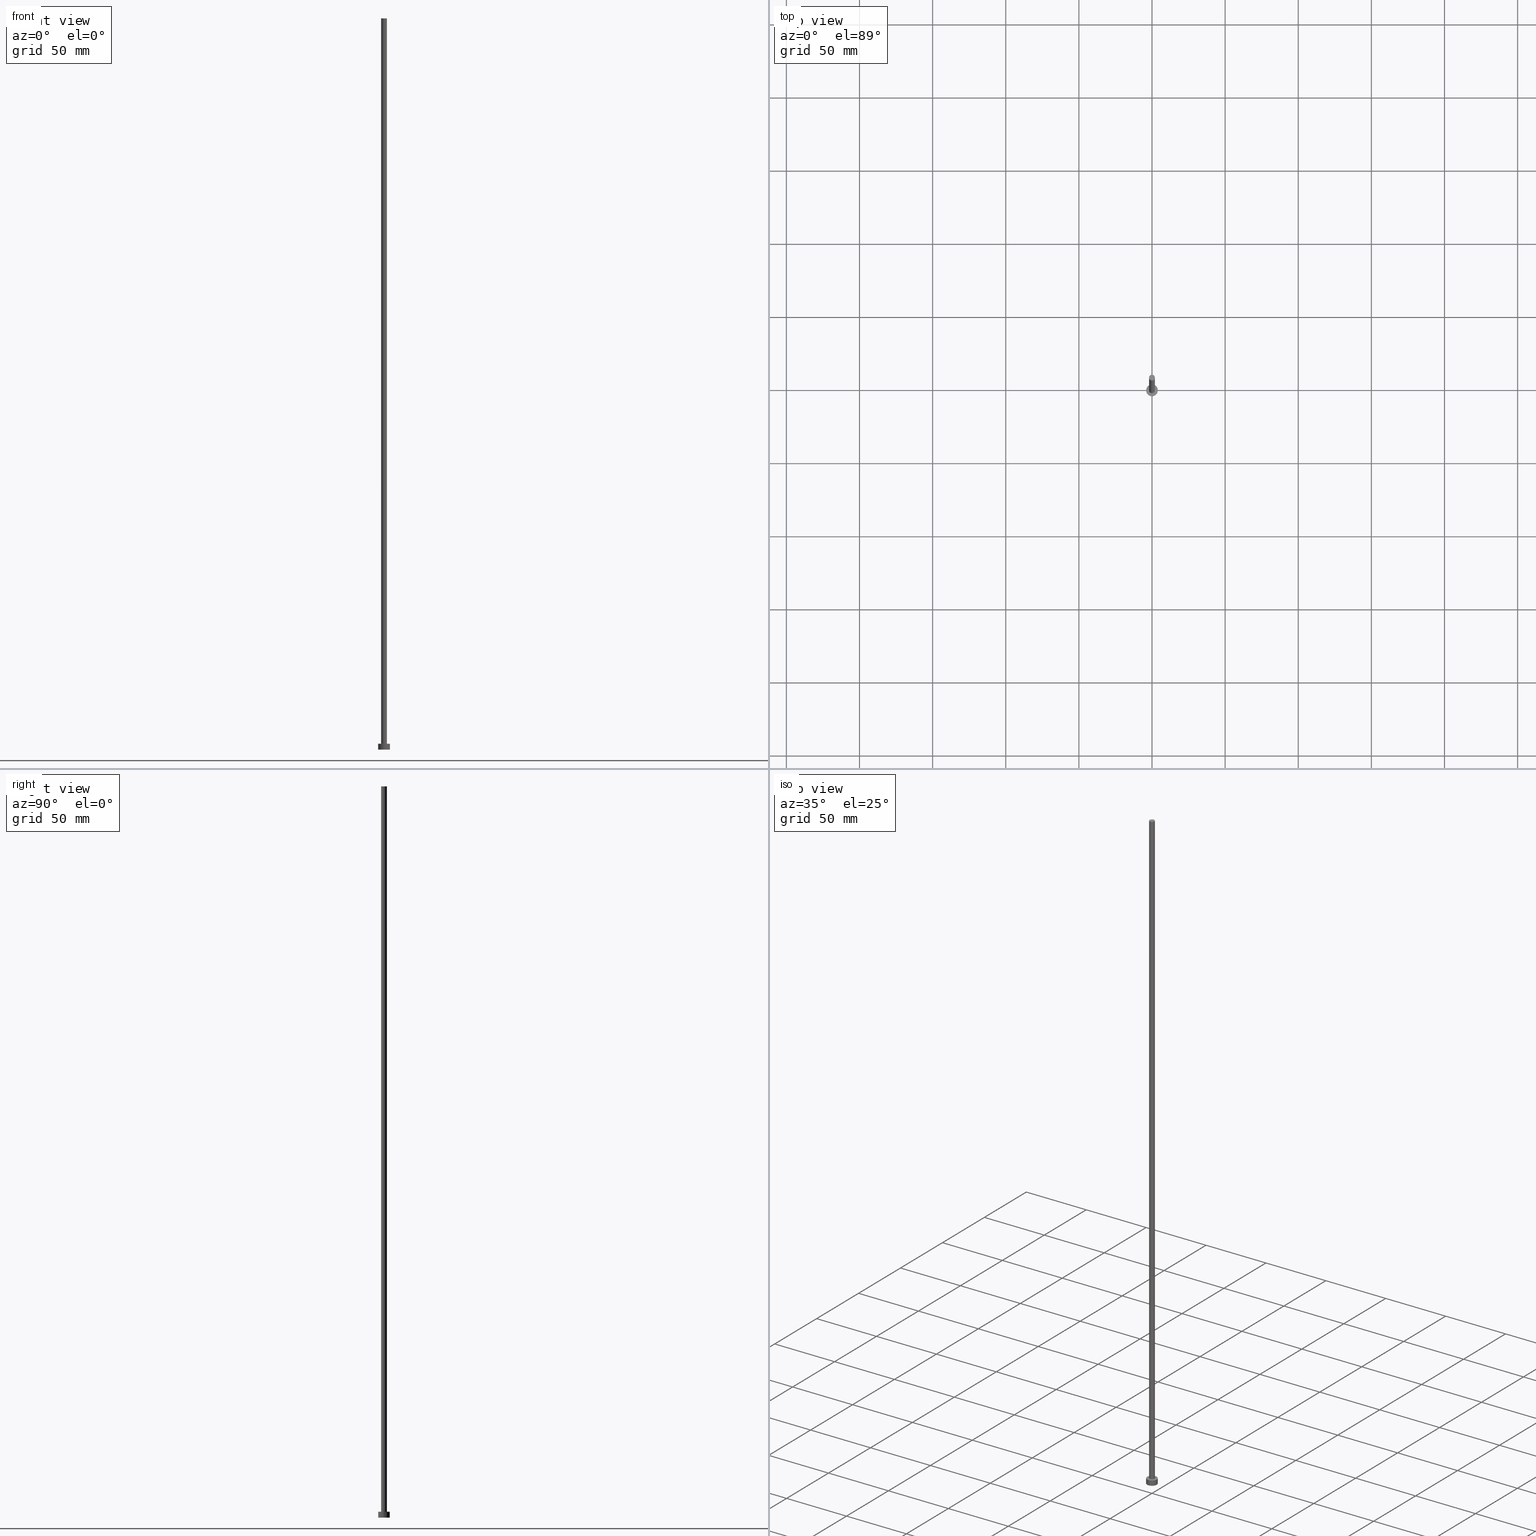
[diagram: canonical four-view strip — front | top / right | iso, engineering-drawing reading convention]
A machine part, canonical four-view strip (front | top / right | iso — engineering-drawing reading convention). The complete STEP part file that produces these views, byte-faithful:
ISO-10303-21;
HEADER;
FILE_DESCRIPTION (( 'STEP AP203' ),
    '1' );
FILE_NAME ('80fe.STEP',
    '2023-02-13T16:36:10',
    ( '' ),
    ( '' ),
    'SwSTEP 2.0',
    'SolidWorks 2019',
    '' );
FILE_SCHEMA (( 'CONFIG_CONTROL_DESIGN' ));
ENDSEC;

DATA;
#1 = PERSON_AND_ORGANIZATION ( #3, #39 ) ;
#2 = FACE_BOUND ( 'NONE', #92, .T. ) ;
#3 = PERSON ( 'NEUR�EN�', 'NEUR�EN�', 'NEUR�EN�', ('NEUR�EN�'), ('NEUR�EN�'), ('NEUR�EN�') ) ;
#4 = ORIENTED_EDGE ( 'NONE', *, *, #206, .T. ) ;
#5 = PLANE ( 'NONE',  #230 ) ;
#6 = CIRCLE ( 'NONE', #202, 2.000000000000000000 ) ;
#7 = DIRECTION ( 'NONE',  ( 0.000000000000000000, 0.000000000000000000, 1.000000000000000000 ) ) ;
#8 = ORIENTED_EDGE ( 'NONE', *, *, #180, .T. ) ;
#9 = DIRECTION ( 'NONE',  ( -0.000000000000000000, -0.000000000000000000, -1.000000000000000000 ) ) ;
#10 = APPROVAL_STATUS ( 'not_yet_approved' ) ;
#11 = LOCAL_TIME ( 17, 36, 10.00000000000000000, #241 ) ;
#12 = DIRECTION ( 'NONE',  ( -0.000000000000000000, -0.000000000000000000, -1.000000000000000000 ) ) ;
#13 = CARTESIAN_POINT ( 'NONE',  ( 0.000000000000000000, 0.000000000000000000, 4.000000000000000000 ) ) ;
#14 = CC_DESIGN_PERSON_AND_ORGANIZATION_ASSIGNMENT ( #236, #104, ( #90 ) ) ;
#15 = CARTESIAN_POINT ( 'NONE',  ( 2.000000000000000000, 2.449293598294706414E-16, 4.000000000000000000 ) ) ;
#16 = ADVANCED_FACE ( 'NONE', ( #33 ), #69, .T. ) ;
#17 = CARTESIAN_POINT ( 'NONE',  ( 0.000000000000000000, 0.000000000000000000, 4.000000000000000000 ) ) ;
#18 = APPROVAL_ROLE ( '' ) ;
#19 = ORIENTED_EDGE ( 'NONE', *, *, #238, .T. ) ;
#20 = CC_DESIGN_PERSON_AND_ORGANIZATION_ASSIGNMENT ( #73, #32, ( #220 ) ) ;
#21 = CIRCLE ( 'NONE', #82, 2.000000000000000000 ) ;
#22 =( NAMED_UNIT ( * ) PLANE_ANGLE_UNIT ( ) SI_UNIT ( $, .RADIAN. ) );
#23 = VERTEX_POINT ( 'NONE', #93 ) ;
#24 = FACE_OUTER_BOUND ( 'NONE', #80, .T. ) ;
#25 = DIRECTION ( 'NONE',  ( 0.000000000000000000, 0.000000000000000000, 1.000000000000000000 ) ) ;
#26 = DIRECTION ( 'NONE',  ( -0.000000000000000000, -0.000000000000000000, -1.000000000000000000 ) ) ;
#27 = VECTOR ( 'NONE', #12, 1000.000000000000000 ) ;
#28 = DATE_AND_TIME ( #219, #11 ) ;
#29 = APPROVAL_DATE_TIME ( #48, #228 ) ;
#30 = ORIENTED_EDGE ( 'NONE', *, *, #206, .F. ) ;
#31 = APPROVAL ( #10, 'NEUR�EN�' ) ;
#32 = PERSON_AND_ORGANIZATION_ROLE ( 'design_owner' ) ;
#33 = FACE_OUTER_BOUND ( 'NONE', #105, .T. ) ;
#34 = DIRECTION ( 'NONE',  ( 0.000000000000000000, 0.000000000000000000, 1.000000000000000000 ) ) ;
#35 = CARTESIAN_POINT ( 'NONE',  ( 2.000000000000000000, 2.449293598294706414E-16, 500.0000000000000000 ) ) ;
#36 = PERSON_AND_ORGANIZATION ( #3, #39 ) ;
#37 = EDGE_CURVE ( 'NONE', #23, #231, #112, .T. ) ;
#38 = COORDINATED_UNIVERSAL_TIME_OFFSET ( 1, 0, .AHEAD. ) ;
#39 = ORGANIZATION ( 'NEUR�EN�', 'NEUR�EN�', '' ) ;
#40 = ORIENTED_EDGE ( 'NONE', *, *, #144, .F. ) ;
#41 = DIRECTION ( 'NONE',  ( 1.000000000000000000, 0.000000000000000000, 0.000000000000000000 ) ) ;
#42 = VERTEX_POINT ( 'NONE', #134 ) ;
#43 = DIRECTION ( 'NONE',  ( 1.000000000000000000, 0.000000000000000000, 0.000000000000000000 ) ) ;
#44 = LINE ( 'NONE', #201, #174 ) ;
#45 = DIRECTION ( 'NONE',  ( 1.000000000000000000, 0.000000000000000000, -0.000000000000000000 ) ) ;
#46 = APPROVAL_DATE_TIME ( #28, #31 ) ;
#47 = PLANE ( 'NONE',  #129 ) ;
#48 = DATE_AND_TIME ( #221, #152 ) ;
#49 = PERSON_AND_ORGANIZATION ( #3, #39 ) ;
#50 = CC_DESIGN_PERSON_AND_ORGANIZATION_ASSIGNMENT ( #81, #121, ( #90 ) ) ;
#51 = DIRECTION ( 'NONE',  ( 1.000000000000000000, 0.000000000000000000, 0.000000000000000000 ) ) ;
#52 = PERSON_AND_ORGANIZATION ( #3, #39 ) ;
#53 = AXIS2_PLACEMENT_3D ( 'NONE', #94, #243, #72 ) ;
#54 = LOCAL_TIME ( 17, 36, 10.00000000000000000, #96 ) ;
#55 = ADVANCED_FACE ( 'NONE', ( #207 ), #169, .T. ) ;
#56 = CARTESIAN_POINT ( 'NONE',  ( 2.000000000000000000, 2.449293598294706414E-16, 500.0000000000000000 ) ) ;
#57 = AXIS2_PLACEMENT_3D ( 'NONE', #211, #135, #168 ) ;
#58 = ADVANCED_FACE ( 'NONE', ( #166 ), #232, .T. ) ;
#59 = AXIS2_PLACEMENT_3D ( 'NONE', #97, #170, #246 ) ;
#60 = SECURITY_CLASSIFICATION ( '', '', #181 ) ;
#61 = DIRECTION ( 'NONE',  ( 1.000000000000000000, 0.000000000000000000, -0.000000000000000000 ) ) ;
#62 = EDGE_LOOP ( 'NONE', ( #40, #63, #8, #216 ) ) ;
#63 = ORIENTED_EDGE ( 'NONE', *, *, #133, .F. ) ;
#64 = ADVANCED_FACE ( 'NONE', ( #79 ), #66, .T. ) ;
#65 = AXIS2_PLACEMENT_3D ( 'NONE', #244, #223, #51 ) ;
#66 = CYLINDRICAL_SURFACE ( 'NONE', #57, 4.000000000000000000 ) ;
#67 = CARTESIAN_POINT ( 'NONE',  ( 0.000000000000000000, 0.000000000000000000, 0.000000000000000000 ) ) ;
#68 = DATE_TIME_ROLE ( 'creation_date' ) ;
#69 = CYLINDRICAL_SURFACE ( 'NONE', #188, 4.000000000000000000 ) ;
#70 = VECTOR ( 'NONE', #9, 1000.000000000000000 ) ;
#71 = DIRECTION ( 'NONE',  ( 1.000000000000000000, 0.000000000000000000, 0.000000000000000000 ) ) ;
#72 = DIRECTION ( 'NONE',  ( 1.000000000000000000, 0.000000000000000000, 0.000000000000000000 ) ) ;
#73 = PERSON_AND_ORGANIZATION ( #3, #39 ) ;
#74 = CARTESIAN_POINT ( 'NONE',  ( 0.000000000000000000, 0.000000000000000000, 500.0000000000000000 ) ) ;
#75 = SHAPE_DEFINITION_REPRESENTATION ( #151, #212 ) ;
#76 = APPLICATION_CONTEXT ( 'configuration controlled 3d designs of mechanical parts and assemblies' ) ;
#77 = APPROVAL_DATE_TIME ( #251, #200 ) ;
#78 = LOCAL_TIME ( 17, 36, 10.00000000000000000, #208 ) ;
#79 = FACE_OUTER_BOUND ( 'NONE', #83, .T. ) ;
#80 = EDGE_LOOP ( 'NONE', ( #30, #159 ) ) ;
#81 = PERSON_AND_ORGANIZATION ( #3, #39 ) ;
#82 = AXIS2_PLACEMENT_3D ( 'NONE', #13, #34, #71 ) ;
#83 = EDGE_LOOP ( 'NONE', ( #217, #253, #106, #240 ) ) ;
#84 = AXIS2_PLACEMENT_3D ( 'NONE', #179, #140, #252 ) ;
#85 = CIRCLE ( 'NONE', #204, 4.000000000000000000 ) ;
#86 = DIRECTION ( 'NONE',  ( 1.000000000000000000, 0.000000000000000000, -0.000000000000000000 ) ) ;
#87 = CARTESIAN_POINT ( 'NONE',  ( 0.000000000000000000, 0.000000000000000000, 500.0000000000000000 ) ) ;
#88 = EDGE_CURVE ( 'NONE', #108, #127, #21, .T. ) ;
#89 = DIRECTION ( 'NONE',  ( 0.000000000000000000, 0.000000000000000000, 1.000000000000000000 ) ) ;
#90 = PRODUCT_DEFINITION_FORMATION_WITH_SPECIFIED_SOURCE ( 'LIBOVOLN�', '', #220, .NOT_KNOWN. ) ;
#91 = APPROVAL_ROLE ( '' ) ;
#92 = EDGE_LOOP ( 'NONE', ( #182, #234 ) ) ;
#93 = CARTESIAN_POINT ( 'NONE',  ( -4.000000000000000000, 0.000000000000000000, 4.000000000000000000 ) ) ;
#94 = CARTESIAN_POINT ( 'NONE',  ( 0.000000000000000000, 0.000000000000000000, 4.000000000000000000 ) ) ;
#95 = VECTOR ( 'NONE', #195, 1000.000000000000000 ) ;
#96 = COORDINATED_UNIVERSAL_TIME_OFFSET ( 1, 0, .AHEAD. ) ;
#97 = CARTESIAN_POINT ( 'NONE',  ( 0.000000000000000000, 0.000000000000000000, 0.000000000000000000 ) ) ;
#98 = DIRECTION ( 'NONE',  ( 0.000000000000000000, 0.000000000000000000, 1.000000000000000000 ) ) ;
#99 = APPROVAL_PERSON_ORGANIZATION ( #36, #228, #18 ) ;
#100 = COORDINATED_UNIVERSAL_TIME_OFFSET ( 1, 0, .AHEAD. ) ;
#101 = ORIENTED_EDGE ( 'NONE', *, *, #133, .T. ) ;
#102 = CC_DESIGN_APPROVAL ( #31, ( #226 ) ) ;
#103 = CARTESIAN_POINT ( 'NONE',  ( 4.000000000000000000, 4.898587196589412829E-16, 0.000000000000000000 ) ) ;
#104 = PERSON_AND_ORGANIZATION_ROLE ( 'design_supplier' ) ;
#105 = EDGE_LOOP ( 'NONE', ( #189, #124, #164, #4 ) ) ;
#106 = ORIENTED_EDGE ( 'NONE', *, *, #186, .T. ) ;
#107 = LINE ( 'NONE', #35, #95 ) ;
#108 = VERTEX_POINT ( 'NONE', #114 ) ;
#109 = EDGE_CURVE ( 'NONE', #237, #23, #225, .T. ) ;
#110 = AXIS2_PLACEMENT_3D ( 'NONE', #123, #146, #43 ) ;
#111 = FACE_OUTER_BOUND ( 'NONE', #143, .T. ) ;
#112 = LINE ( 'NONE', #187, #70 ) ;
#113 = CARTESIAN_POINT ( 'NONE',  ( -2.000000000000000000, 0.000000000000000000, 500.0000000000000000 ) ) ;
#114 = CARTESIAN_POINT ( 'NONE',  ( -2.000000000000000000, 0.000000000000000000, 4.000000000000000000 ) ) ;
#115 = DIRECTION ( 'NONE',  ( -0.000000000000000000, -0.000000000000000000, -1.000000000000000000 ) ) ;
#116 = CC_DESIGN_APPROVAL ( #228, ( #60 ) ) ;
#117 = APPROVAL_STATUS ( 'not_yet_approved' ) ;
#118 = CARTESIAN_POINT ( 'NONE',  ( 0.000000000000000000, 0.000000000000000000, 0.000000000000000000 ) ) ;
#119 = LOCAL_TIME ( 17, 36, 10.00000000000000000, #38 ) ;
#120 = ORIENTED_EDGE ( 'NONE', *, *, #172, .T. ) ;
#121 = PERSON_AND_ORGANIZATION_ROLE ( 'creator' ) ;
#122 = AXIS2_PLACEMENT_3D ( 'NONE', #245, #7, #86 ) ;
#123 = CARTESIAN_POINT ( 'NONE',  ( 0.000000000000000000, 0.000000000000000000, 4.000000000000000000 ) ) ;
#124 = ORIENTED_EDGE ( 'NONE', *, *, #242, .F. ) ;
#125 = ADVANCED_FACE ( 'NONE', ( #171 ), #155, .T. ) ;
#126 = PERSON_AND_ORGANIZATION_ROLE ( 'creator' ) ;
#127 = VERTEX_POINT ( 'NONE', #15 ) ;
#128 =( LENGTH_UNIT ( ) NAMED_UNIT ( * ) SI_UNIT ( .MILLI., .METRE. ) );
#129 = AXIS2_PLACEMENT_3D ( 'NONE', #162, #25, #45 ) ;
#130 = DIRECTION ( 'NONE',  ( -1.000000000000000000, 0.000000000000000000, 0.000000000000000000 ) ) ;
#131 = MECHANICAL_CONTEXT ( 'NONE', #76, 'mechanical' ) ;
#132 = ORIENTED_EDGE ( 'NONE', *, *, #109, .T. ) ;
#133 = EDGE_CURVE ( 'NONE', #42, #235, #6, .T. ) ;
#134 = CARTESIAN_POINT ( 'NONE',  ( -2.000000000000000000, 0.000000000000000000, 500.0000000000000000 ) ) ;
#135 = DIRECTION ( 'NONE',  ( -0.000000000000000000, -0.000000000000000000, -1.000000000000000000 ) ) ;
#136 = EDGE_CURVE ( 'NONE', #237, #145, #44, .T. ) ;
#137 = APPROVAL_STATUS ( 'not_yet_approved' ) ;
#138 = DATE_AND_TIME ( #194, #54 ) ;
#139 = CARTESIAN_POINT ( 'NONE',  ( -4.000000000000000000, 0.000000000000000000, 0.000000000000000000 ) ) ;
#140 = DIRECTION ( 'NONE',  ( -0.000000000000000000, -0.000000000000000000, -1.000000000000000000 ) ) ;
#141 = DESIGN_CONTEXT ( 'detailed design', #167, 'design' ) ;
#142 = APPROVAL_PERSON_ORGANIZATION ( #49, #200, #193 ) ;
#143 = EDGE_LOOP ( 'NONE', ( #149, #132 ) ) ;
#144 = EDGE_CURVE ( 'NONE', #235, #127, #107, .T. ) ;
#145 = VERTEX_POINT ( 'NONE', #103 ) ;
#146 = DIRECTION ( 'NONE',  ( 0.000000000000000000, 0.000000000000000000, 1.000000000000000000 ) ) ;
#147 = ADVANCED_FACE ( 'NONE', ( #2, #111 ), #47, .T. ) ;
#148 = DIRECTION ( 'NONE',  ( 0.000000000000000000, 0.000000000000000000, 1.000000000000000000 ) ) ;
#149 = ORIENTED_EDGE ( 'NONE', *, *, #242, .T. ) ;
#150 = DIRECTION ( 'NONE',  ( 0.000000000000000000, 0.000000000000000000, 1.000000000000000000 ) ) ;
#151 = PRODUCT_DEFINITION_SHAPE ( 'NONE', 'NONE',  #226 ) ;
#152 = LOCAL_TIME ( 17, 36, 10.00000000000000000, #100 ) ;
#153 = CC_DESIGN_DATE_AND_TIME_ASSIGNMENT ( #185, #68, ( #226 ) ) ;
#154 = DIRECTION ( 'NONE',  ( -0.000000000000000000, -0.000000000000000000, -1.000000000000000000 ) ) ;
#155 = CYLINDRICAL_SURFACE ( 'NONE', #214, 2.000000000000000000 ) ;
#156 = CC_DESIGN_DATE_AND_TIME_ASSIGNMENT ( #138, #233, ( #60 ) ) ;
#157 = DIRECTION ( 'NONE',  ( 0.000000000000000000, 0.000000000000000000, 1.000000000000000000 ) ) ;
#158 = ORIENTED_EDGE ( 'NONE', *, *, #172, .F. ) ;
#159 = ORIENTED_EDGE ( 'NONE', *, *, #186, .F. ) ;
#160 =( NAMED_UNIT ( * ) SI_UNIT ( $, .STERADIAN. ) SOLID_ANGLE_UNIT ( ) );
#161 = EDGE_LOOP ( 'NONE', ( #158, #229, #19, #183 ) ) ;
#162 = CARTESIAN_POINT ( 'NONE',  ( 0.000000000000000000, 0.000000000000000000, 4.000000000000000000 ) ) ;
#163 = CLOSED_SHELL ( 'NONE', ( #58, #64, #16, #147, #255, #125, #55 ) ) ;
#164 = ORIENTED_EDGE ( 'NONE', *, *, #37, .T. ) ;
#165 = AXIS2_PLACEMENT_3D ( 'NONE', #87, #89, #210 ) ;
#166 = FACE_OUTER_BOUND ( 'NONE', #161, .T. ) ;
#167 = APPLICATION_CONTEXT ( 'configuration controlled 3d designs of mechanical parts and assemblies' ) ;
#168 = DIRECTION ( 'NONE',  ( -1.000000000000000000, 0.000000000000000000, 0.000000000000000000 ) ) ;
#169 = PLANE ( 'NONE',  #122 ) ;
#170 = DIRECTION ( 'NONE',  ( 0.000000000000000000, 0.000000000000000000, 1.000000000000000000 ) ) ;
#171 = FACE_OUTER_BOUND ( 'NONE', #62, .T. ) ;
#172 = EDGE_CURVE ( 'NONE', #235, #42, #247, .T. ) ;
#173 = PERSON_AND_ORGANIZATION ( #3, #39 ) ;
#174 = VECTOR ( 'NONE', #26, 1000.000000000000000 ) ;
#175 = CIRCLE ( 'NONE', #59, 4.000000000000000000 ) ;
#176 = CC_DESIGN_SECURITY_CLASSIFICATION ( #60, ( #90 ) ) ;
#177 = CARTESIAN_POINT ( 'NONE',  ( 0.000000000000000000, 0.000000000000000000, 500.0000000000000000 ) ) ;
#178 = CALENDAR_DATE ( 2023, 13, 2 ) ;
#179 = CARTESIAN_POINT ( 'NONE',  ( 0.000000000000000000, 0.000000000000000000, 500.0000000000000000 ) ) ;
#180 = EDGE_CURVE ( 'NONE', #42, #108, #190, .T. ) ;
#181 = SECURITY_CLASSIFICATION_LEVEL ( 'unclassified' ) ;
#182 = ORIENTED_EDGE ( 'NONE', *, *, #88, .F. ) ;
#183 = ORIENTED_EDGE ( 'NONE', *, *, #180, .F. ) ;
#184 = EDGE_LOOP ( 'NONE', ( #101, #120 ) ) ;
#185 = DATE_AND_TIME ( #203, #78 ) ;
#186 = EDGE_CURVE ( 'NONE', #145, #231, #175, .T. ) ;
#187 = CARTESIAN_POINT ( 'NONE',  ( -4.000000000000000000, 0.000000000000000000, 4.000000000000000000 ) ) ;
#188 = AXIS2_PLACEMENT_3D ( 'NONE', #239, #154, #130 ) ;
#189 = ORIENTED_EDGE ( 'NONE', *, *, #136, .F. ) ;
#190 = LINE ( 'NONE', #113, #27 ) ;
#191 = DIRECTION ( 'NONE',  ( -1.000000000000000000, 0.000000000000000000, 0.000000000000000000 ) ) ;
#192 = CIRCLE ( 'NONE', #248, 2.000000000000000000 ) ;
#193 = APPROVAL_ROLE ( '' ) ;
#194 = CALENDAR_DATE ( 2023, 13, 2 ) ;
#195 = DIRECTION ( 'NONE',  ( -0.000000000000000000, -0.000000000000000000, -1.000000000000000000 ) ) ;
#196 = CC_DESIGN_PERSON_AND_ORGANIZATION_ASSIGNMENT ( #173, #126, ( #226 ) ) ;
#197 = UNCERTAINTY_MEASURE_WITH_UNIT (LENGTH_MEASURE( 1.000000000000000082E-05 ), #128, 'distance_accuracy_value', 'NONE');
#198 = APPLICATION_PROTOCOL_DEFINITION ( 'international standard', 'config_control_design', 1994, #76 ) ;
#199 = APPROVAL_PERSON_ORGANIZATION ( #52, #31, #91 ) ;
#200 = APPROVAL ( #137, 'NEUR�EN�' ) ;
#201 = CARTESIAN_POINT ( 'NONE',  ( 4.000000000000000000, 4.898587196589412829E-16, 4.000000000000000000 ) ) ;
#202 = AXIS2_PLACEMENT_3D ( 'NONE', #177, #148, #218 ) ;
#203 = CALENDAR_DATE ( 2023, 13, 2 ) ;
#204 = AXIS2_PLACEMENT_3D ( 'NONE', #118, #98, #41 ) ;
#205 = CC_DESIGN_APPROVAL ( #200, ( #90 ) ) ;
#206 = EDGE_CURVE ( 'NONE', #231, #145, #85, .T. ) ;
#207 = FACE_OUTER_BOUND ( 'NONE', #184, .T. ) ;
#208 = COORDINATED_UNIVERSAL_TIME_OFFSET ( 1, 0, .AHEAD. ) ;
#209 = CC_DESIGN_PERSON_AND_ORGANIZATION_ASSIGNMENT ( #1, #227, ( #60 ) ) ;
#210 = DIRECTION ( 'NONE',  ( 1.000000000000000000, 0.000000000000000000, 0.000000000000000000 ) ) ;
#211 = CARTESIAN_POINT ( 'NONE',  ( 0.000000000000000000, 0.000000000000000000, 4.000000000000000000 ) ) ;
#212 = ADVANCED_BREP_SHAPE_REPRESENTATION ( '80fe', ( #249, #65 ), #254 ) ;
#213 = CARTESIAN_POINT ( 'NONE',  ( 4.000000000000000000, 4.898587196589412829E-16, 4.000000000000000000 ) ) ;
#214 = AXIS2_PLACEMENT_3D ( 'NONE', #74, #115, #191 ) ;
#215 = DIRECTION ( 'NONE',  ( 1.000000000000000000, 0.000000000000000000, 0.000000000000000000 ) ) ;
#216 = ORIENTED_EDGE ( 'NONE', *, *, #88, .T. ) ;
#217 = ORIENTED_EDGE ( 'NONE', *, *, #109, .F. ) ;
#218 = DIRECTION ( 'NONE',  ( 1.000000000000000000, 0.000000000000000000, 0.000000000000000000 ) ) ;
#219 = CALENDAR_DATE ( 2023, 13, 2 ) ;
#220 = PRODUCT ( '80fe', '80fe', '', ( #131 ) ) ;
#221 = CALENDAR_DATE ( 2023, 13, 2 ) ;
#222 = CIRCLE ( 'NONE', #110, 4.000000000000000000 ) ;
#223 = DIRECTION ( 'NONE',  ( 0.000000000000000000, 0.000000000000000000, 1.000000000000000000 ) ) ;
#224 = APPLICATION_PROTOCOL_DEFINITION ( 'international standard', 'config_control_design', 1994, #167 ) ;
#225 = CIRCLE ( 'NONE', #53, 4.000000000000000000 ) ;
#226 = PRODUCT_DEFINITION ( 'NEZN�M�', '', #90, #141 ) ;
#227 = PERSON_AND_ORGANIZATION_ROLE ( 'classification_officer' ) ;
#228 = APPROVAL ( #117, 'NEUR�EN�' ) ;
#229 = ORIENTED_EDGE ( 'NONE', *, *, #144, .T. ) ;
#230 = AXIS2_PLACEMENT_3D ( 'NONE', #67, #150, #61 ) ;
#231 = VERTEX_POINT ( 'NONE', #139 ) ;
#232 = CYLINDRICAL_SURFACE ( 'NONE', #84, 2.000000000000000000 ) ;
#233 = DATE_TIME_ROLE ( 'classification_date' ) ;
#234 = ORIENTED_EDGE ( 'NONE', *, *, #238, .F. ) ;
#235 = VERTEX_POINT ( 'NONE', #56 ) ;
#236 = PERSON_AND_ORGANIZATION ( #3, #39 ) ;
#237 = VERTEX_POINT ( 'NONE', #213 ) ;
#238 = EDGE_CURVE ( 'NONE', #127, #108, #192, .T. ) ;
#239 = CARTESIAN_POINT ( 'NONE',  ( 0.000000000000000000, 0.000000000000000000, 4.000000000000000000 ) ) ;
#240 = ORIENTED_EDGE ( 'NONE', *, *, #37, .F. ) ;
#241 = COORDINATED_UNIVERSAL_TIME_OFFSET ( 1, 0, .AHEAD. ) ;
#242 = EDGE_CURVE ( 'NONE', #23, #237, #222, .T. ) ;
#243 = DIRECTION ( 'NONE',  ( 0.000000000000000000, 0.000000000000000000, 1.000000000000000000 ) ) ;
#244 = CARTESIAN_POINT ( 'NONE',  ( 0.000000000000000000, 0.000000000000000000, 0.000000000000000000 ) ) ;
#245 = CARTESIAN_POINT ( 'NONE',  ( 0.000000000000000000, 0.000000000000000000, 500.0000000000000000 ) ) ;
#246 = DIRECTION ( 'NONE',  ( 1.000000000000000000, 0.000000000000000000, 0.000000000000000000 ) ) ;
#247 = CIRCLE ( 'NONE', #165, 2.000000000000000000 ) ;
#248 = AXIS2_PLACEMENT_3D ( 'NONE', #17, #157, #215 ) ;
#249 = MANIFOLD_SOLID_BREP ( 'P�idat vysunut�m3', #163 ) ;
#250 = PRODUCT_RELATED_PRODUCT_CATEGORY ( 'detail', '', ( #220 ) ) ;
#251 = DATE_AND_TIME ( #178, #119 ) ;
#252 = DIRECTION ( 'NONE',  ( -1.000000000000000000, 0.000000000000000000, 0.000000000000000000 ) ) ;
#253 = ORIENTED_EDGE ( 'NONE', *, *, #136, .T. ) ;
#254 =( GEOMETRIC_REPRESENTATION_CONTEXT ( 3 ) GLOBAL_UNCERTAINTY_ASSIGNED_CONTEXT ( ( #197 ) ) GLOBAL_UNIT_ASSIGNED_CONTEXT ( ( #128, #22, #160 ) ) REPRESENTATION_CONTEXT ( 'NONE', 'WORKASPACE' ) );
#255 = ADVANCED_FACE ( 'NONE', ( #24 ), #5, .F. ) ;
ENDSEC;
END-ISO-10303-21;
